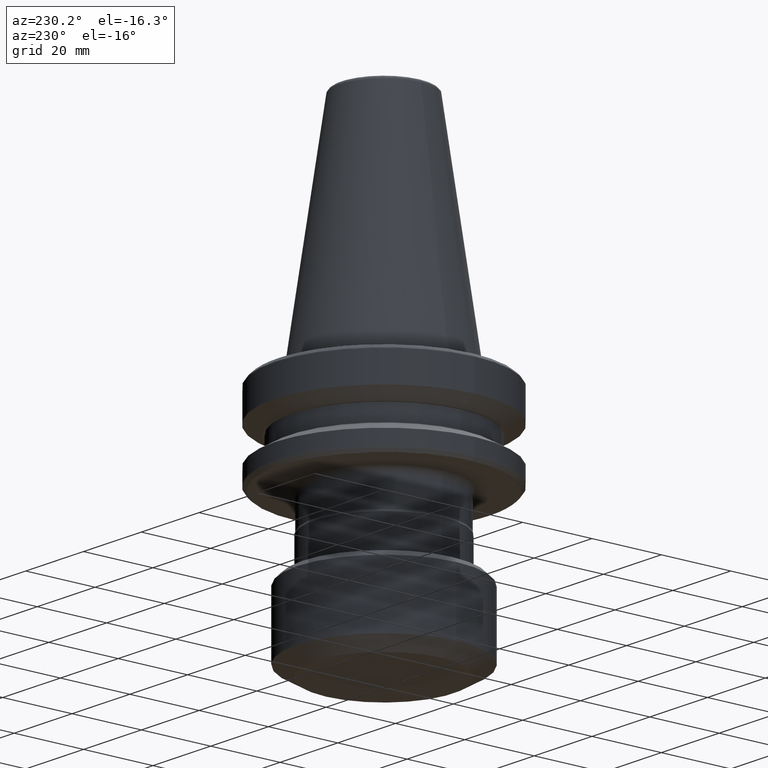
[diagram: clean part render]
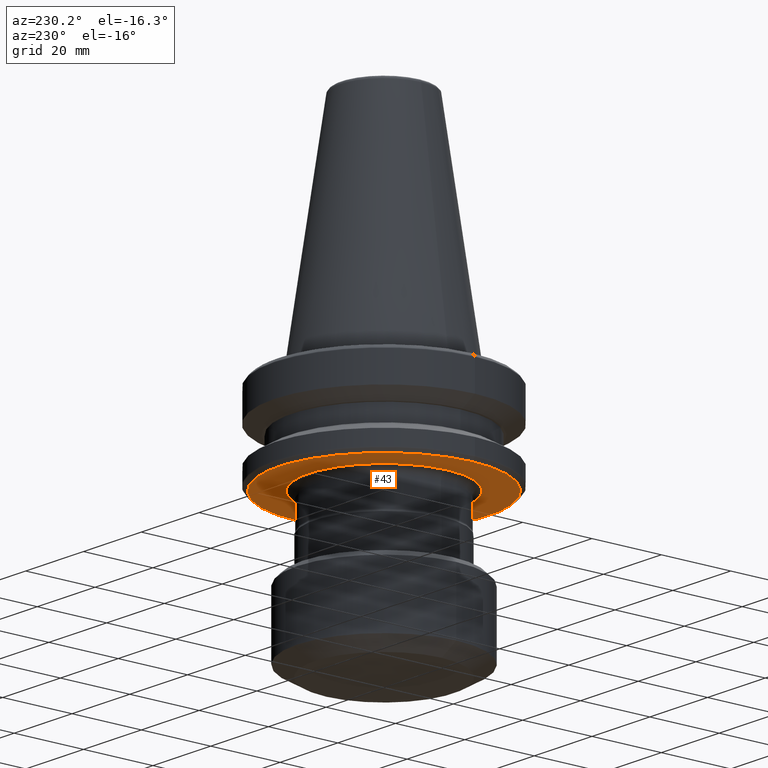
[diagram: same view with one face highlighted and labeled with its STEP entity id]
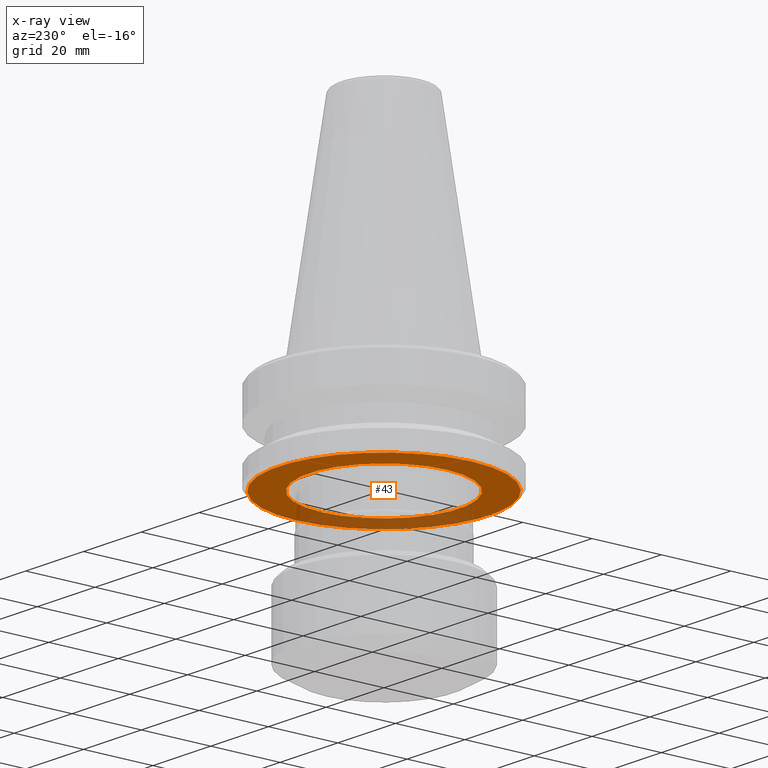
[diagram: x-ray of the same camera — body ghosted, the highlighted face saturated]
A machine part, auxiliary view. The second image highlights one B-rep face of the part: STEP entity #43.
The next image is the same camera in x-ray: the body ghosted, the highlighted face saturated — about 27% of this face is hidden behind the body in this view.
In plain terms, the highlighted planar face has unit normal (0, 0, -1).
Its self-contained STEP definition (entity closure, byte-faithful):
#17 = DIRECTION ( 'NONE',  ( 1.000000000000000000, 0.0000000000000000000, 0.0000000000000000000 ) ) ;
#43 = ADVANCED_FACE ( 'NONE', ( #1384, #78 ), #138, .T. ) ;
#75 = ORIENTED_EDGE ( 'NONE', *, *, #1419, .F. ) ;
#78 = FACE_OUTER_BOUND ( 'NONE', #1112, .T. ) ;
#92 = AXIS2_PLACEMENT_3D ( 'NONE', #529, #532, #535 ) ;
#107 = EDGE_CURVE ( 'NONE', #821, #603, #1380, .T. ) ;
#138 = PLANE ( 'NONE',  #867 ) ;
#158 = CARTESIAN_POINT ( 'NONE',  ( 0.0000000000000000000, 3.088089149698245900E-015, -27.00000000000000400 ) ) ;
#232 = ORIENTED_EDGE ( 'NONE', *, *, #107, .T. ) ;
#298 = CARTESIAN_POINT ( 'NONE',  ( 0.0000000000000000000, 0.0000000000000000000, -27.00000000000000400 ) ) ;
#299 = DIRECTION ( 'NONE',  ( -0.0000000000000000000, -0.0000000000000000000, 1.000000000000000000 ) ) ;
#302 = DIRECTION ( 'NONE',  ( -1.000000000000000000, 0.0000000000000000000, 0.0000000000000000000 ) ) ;
#320 = CIRCLE ( 'NONE', #544, 21.75000000000000000 ) ;
#355 = AXIS2_PLACEMENT_3D ( 'NONE', #1068, #1073, #17 ) ;
#529 = CARTESIAN_POINT ( 'NONE',  ( 0.0000000000000000000, 0.0000000000000000000, -26.99999999999999600 ) ) ;
#532 = DIRECTION ( 'NONE',  ( -0.0000000000000000000, -0.0000000000000000000, 1.000000000000000000 ) ) ;
#535 = DIRECTION ( 'NONE',  ( 1.000000000000000000, 0.0000000000000000000, 0.0000000000000000000 ) ) ;
#544 = AXIS2_PLACEMENT_3D ( 'NONE', #722, #726, #729 ) ;
#600 = AXIS2_PLACEMENT_3D ( 'NONE', #298, #299, #302 ) ;
#603 = VERTEX_POINT ( 'NONE', #1310 ) ;
#722 = CARTESIAN_POINT ( 'NONE',  ( 0.0000000000000000000, 0.0000000000000000000, -27.00000000000000400 ) ) ;
#726 = DIRECTION ( 'NONE',  ( -0.0000000000000000000, -0.0000000000000000000, 1.000000000000000000 ) ) ;
#729 = DIRECTION ( 'NONE',  ( -1.000000000000000000, 0.0000000000000000000, 0.0000000000000000000 ) ) ;
#797 = VERTEX_POINT ( 'NONE', #1465 ) ;
#815 = EDGE_LOOP ( 'NONE', ( #232, #1236 ) ) ;
#821 = VERTEX_POINT ( 'NONE', #1176 ) ;
#867 = AXIS2_PLACEMENT_3D ( 'NONE', #158, #1391, #1084 ) ;
#973 = CARTESIAN_POINT ( 'NONE',  ( 30.33431457505076200, 0.0000000000000000000, -26.99999999999999600 ) ) ;
#1039 = ORIENTED_EDGE ( 'NONE', *, *, #1182, .F. ) ;
#1068 = CARTESIAN_POINT ( 'NONE',  ( 0.0000000000000000000, 0.0000000000000000000, -26.99999999999999600 ) ) ;
#1073 = DIRECTION ( 'NONE',  ( -0.0000000000000000000, -0.0000000000000000000, 1.000000000000000000 ) ) ;
#1083 = CIRCLE ( 'NONE', #355, 30.33431457505076200 ) ;
#1084 = DIRECTION ( 'NONE',  ( -1.000000000000000000, 0.0000000000000000000, -0.0000000000000000000 ) ) ;
#1109 = VERTEX_POINT ( 'NONE', #973 ) ;
#1112 = EDGE_LOOP ( 'NONE', ( #1039, #75 ) ) ;
#1147 = CIRCLE ( 'NONE', #92, 30.33431457505076200 ) ;
#1176 = CARTESIAN_POINT ( 'NONE',  ( -21.75000000000000000, 0.0000000000000000000, -27.00000000000000700 ) ) ;
#1182 = EDGE_CURVE ( 'NONE', #1109, #797, #1083, .T. ) ;
#1236 = ORIENTED_EDGE ( 'NONE', *, *, #1280, .T. ) ;
#1280 = EDGE_CURVE ( 'NONE', #603, #821, #320, .T. ) ;
#1310 = CARTESIAN_POINT ( 'NONE',  ( 21.75000000000000000, 2.663606788145493000E-015, -27.00000000000000700 ) ) ;
#1380 = CIRCLE ( 'NONE', #600, 21.75000000000000000 ) ;
#1384 = FACE_BOUND ( 'NONE', #815, .T. ) ;
#1391 = DIRECTION ( 'NONE',  ( 0.0000000000000000000, 0.0000000000000000000, -1.000000000000000000 ) ) ;
#1419 = EDGE_CURVE ( 'NONE', #797, #1109, #1147, .T. ) ;
#1465 = CARTESIAN_POINT ( 'NONE',  ( -30.33431457505076200, 3.732201245991191800E-015, -26.99999999999999600 ) ) ;